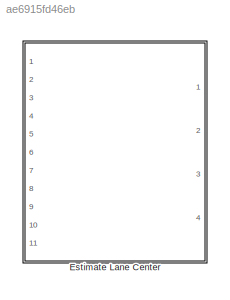
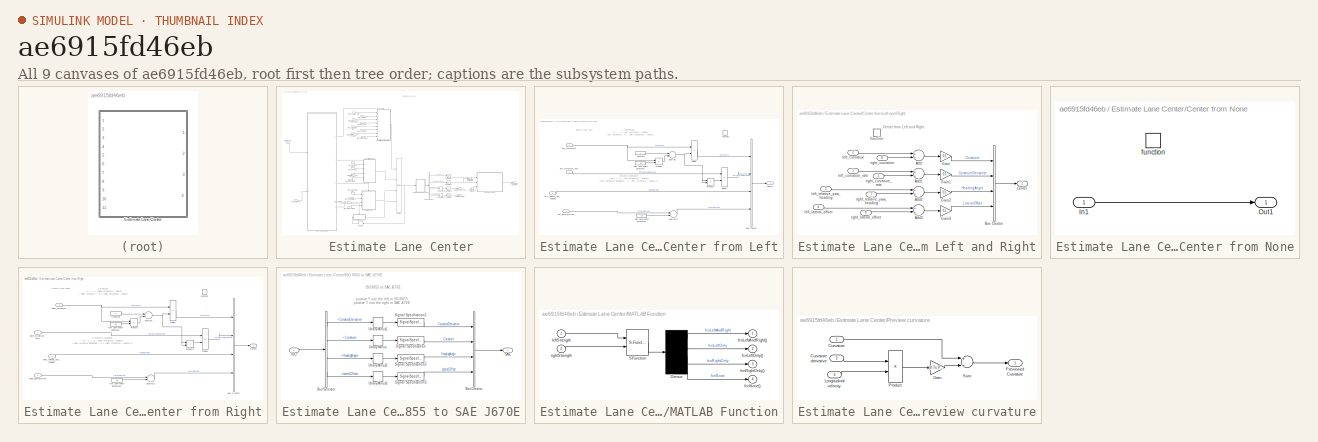
[diagram: thumbnail index - all 9 canvases of the model, root first then tree order]
MODEL slx_ae6915fd46eb
KIND model
CONFIG AbsTol = auto
CONFIG EnableMultiTasking = off
CONFIG FixedStep = auto
CONFIG MaxStep = auto
CONFIG MinStep = auto
CONFIG RelTol = 1e-3
CONFIG SampleTimeConstraint = Unconstrained
CONFIG Solver = VariableStepAuto
CONFIG SolverName = VariableStepAuto
CONFIG StartTime = 0.0
CONFIG StopTime = 10.0
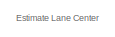
[diagram: Estimate Lane Center - part 1/3, top center region]
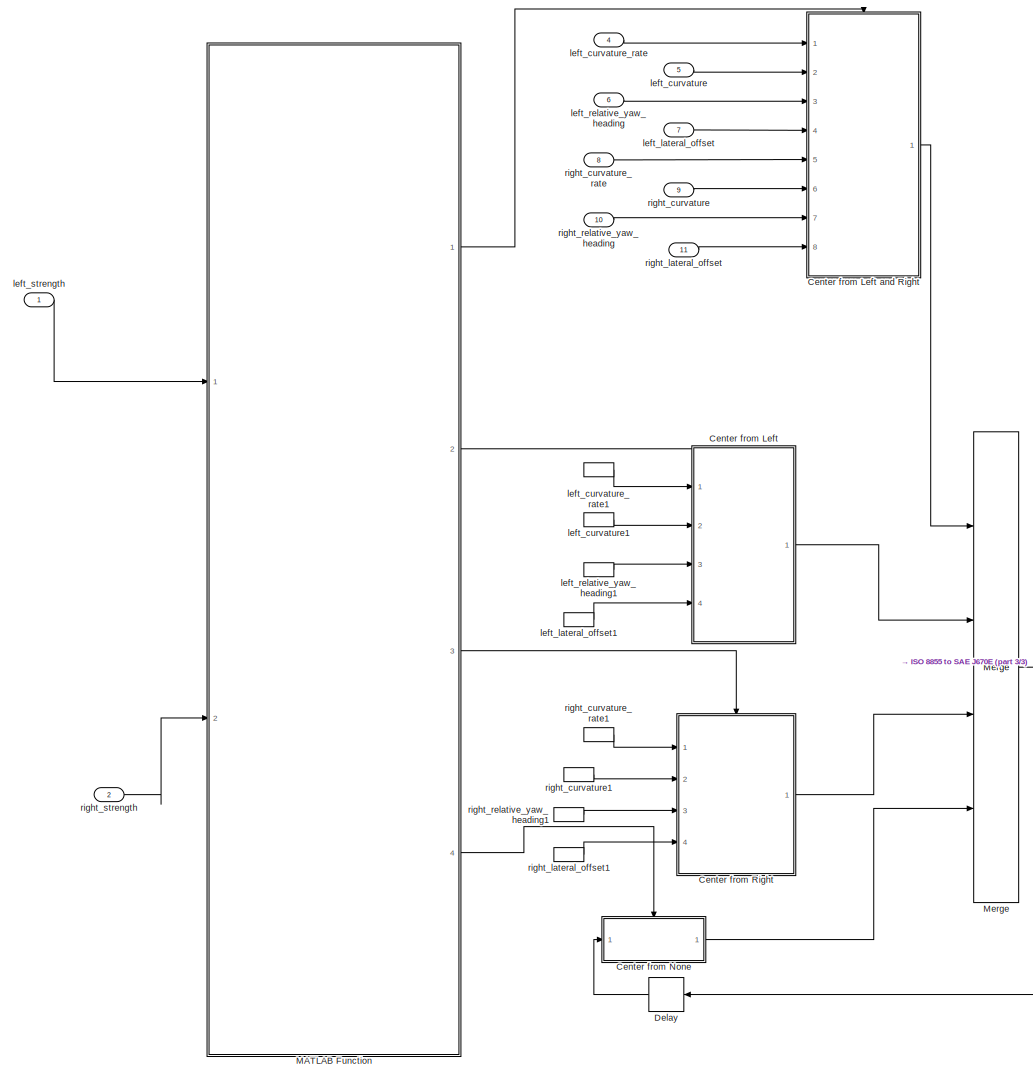
[diagram: Estimate Lane Center - part 2/3, left side, full height]
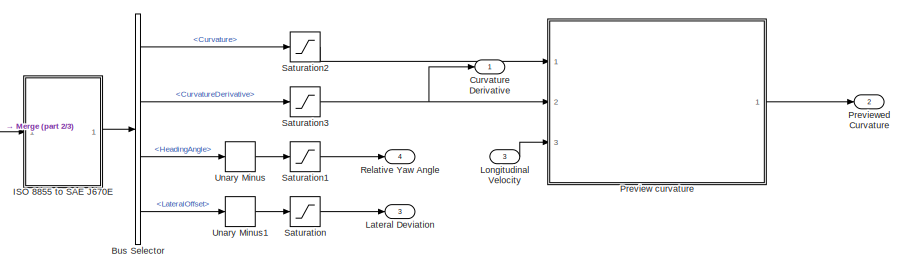
[diagram: Estimate Lane Center - part 3/3, middle right region]
BLOCK [SubSystem] Estimate Lane Center
  Ports = [11, 4]
  RTWFileNameOpts = Use function name
  RTWSystemCode = Reusable function
  RequestExecContextInheritance = off
  TreatAsAtomicUnit = on
  VariantControl = v2
BLOCK [BusSelector] Estimate Lane Center/Bus Selector
  OutputAsBus = off
  OutputSignals = Curvature,CurvatureDerivative,HeadingAngle,LateralOffset
  Ports = [1, 4]
BLOCK [SubSystem] Estimate Lane Center/Center from Left
  Ports = [4, 1, 0, 1]
  RequestExecContextInheritance = off
  TreatAsAtomicUnit = on
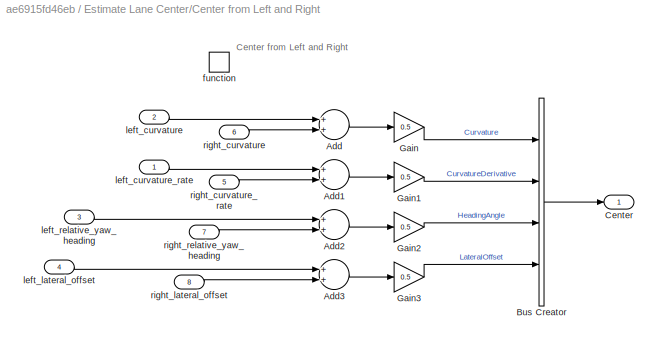
BLOCK [SubSystem] Estimate Lane Center/Center from Left and Right
  Ports = [8, 1, 0, 1]
  RequestExecContextInheritance = off
  TreatAsAtomicUnit = on
BLOCK [Sum] Estimate Lane Center/Center from Left and Right/Add
  InputSameDT = off
  OutDataTypeStr = Inherit: Inherit via internal rule
  Ports = [2, 1]
  SaturateOnIntegerOverflow = off
BLOCK [Sum] Estimate Lane Center/Center from Left and Right/Add1
  InputSameDT = off
  OutDataTypeStr = Inherit: Inherit via internal rule
  Ports = [2, 1]
  SaturateOnIntegerOverflow = off
BLOCK [Sum] Estimate Lane Center/Center from Left and Right/Add2
  InputSameDT = off
  OutDataTypeStr = Inherit: Inherit via internal rule
  Ports = [2, 1]
  SaturateOnIntegerOverflow = off
BLOCK [Sum] Estimate Lane Center/Center from Left and Right/Add3
  InputSameDT = off
  OutDataTypeStr = Inherit: Inherit via internal rule
  Ports = [2, 1]
  SaturateOnIntegerOverflow = off
BLOCK [BusCreator] Estimate Lane Center/Center from Left and Right/Bus Creator
  DisplayOption = bar
  InheritFromInputs = on
  Inputs = 4
  Ports = [4, 1]
BLOCK [Outport] Estimate Lane Center/Center from Left and Right/Center
  IconDisplay = Port number
  VectorParamsAs1DForOutWhenUnconnected = off
BLOCK [Gain] Estimate Lane Center/Center from Left and Right/Gain
  Gain = 0.5
  OutDataTypeStr = Inherit: Inherit via internal rule
  ParamDataTypeStr = Inherit: Inherit via internal rule
  SaturateOnIntegerOverflow = off
BLOCK [Gain] Estimate Lane Center/Center from Left and Right/Gain1
  Gain = 0.5
  OutDataTypeStr = Inherit: Inherit via internal rule
  ParamDataTypeStr = Inherit: Inherit via internal rule
  SaturateOnIntegerOverflow = off
BLOCK [Gain] Estimate Lane Center/Center from Left and Right/Gain2
  Gain = 0.5
  OutDataTypeStr = Inherit: Inherit via internal rule
  ParamDataTypeStr = Inherit: Inherit via internal rule
  SaturateOnIntegerOverflow = off
BLOCK [Gain] Estimate Lane Center/Center from Left and Right/Gain3
  Gain = 0.5
  OutDataTypeStr = Inherit: Inherit via internal rule
  ParamDataTypeStr = Inherit: Inherit via internal rule
  SaturateOnIntegerOverflow = off
BLOCK [TriggerPort] Estimate Lane Center/Center from Left and Right/function
  Ports = []
  StatesWhenEnabling = held
  TriggerType = function-call
  VariantControl = Variant
BLOCK [Inport] Estimate Lane Center/Center from Left and Right/left_curvature
  IconDisplay = Port number
  Port = 2
BLOCK [Inport] Estimate Lane Center/Center from Left and Right/left_curvature_rate
  IconDisplay = Port number
BLOCK [Inport] Estimate Lane Center/Center from Left and Right/left_lateral_offset
  IconDisplay = Port number
  Port = 4
BLOCK [Inport] Estimate Lane Center/Center from Left and Right/left_relative_yaw_heading
  IconDisplay = Port number
  Port = 3
BLOCK [Inport] Estimate Lane Center/Center from Left and Right/right_curvature
  IconDisplay = Port number
  Port = 6
BLOCK [Inport] Estimate Lane Center/Center from Left and Right/right_curvature_rate
  IconDisplay = Port number
  Port = 5
BLOCK [Inport] Estimate Lane Center/Center from Left and Right/right_lateral_offset
  IconDisplay = Port number
  Port = 8
BLOCK [Inport] Estimate Lane Center/Center from Left and Right/right_relative_yaw_heading
  IconDisplay = Port number
  Port = 7
BLOCK [BusCreator] Estimate Lane Center/Center from Left/Bus Creator
  DisplayOption = bar
  InheritFromInputs = on
  Inputs = 4
  Ports = [4, 1]
BLOCK [Outport] Estimate Lane Center/Center from Left/Center
  IconDisplay = Port number
  VectorParamsAs1DForOutWhenUnconnected = off
BLOCK [Constant] Estimate Lane Center/Center from Left/Constant
  OutDataTypeStr = Inherit: Inherit via back propagation
BLOCK [Product] Estimate Lane Center/Center from Left/Divide
  InputSameDT = off
  Inputs = */
  OutDataTypeStr = Inherit: Inherit via internal rule
  Ports = [2, 1]
  RndMeth = Floor
  SaturateOnIntegerOverflow = off
BLOCK [Product] Estimate Lane Center/Center from Left/Divide1
  InputSameDT = off
  Inputs = */
  OutDataTypeStr = Inherit: Inherit via internal rule
  Ports = [2, 1]
  RndMeth = Floor
  SaturateOnIntegerOverflow = off
BLOCK [Constant] Estimate Lane Center/Center from Left/Half Lane Width Estimate
  OutDataTypeStr = Inherit: Inherit via back propagation
  Value = 1.8
BLOCK [Constant] Estimate Lane Center/Center from Left/Half Lane Width Estimate1
  OutDataTypeStr = Inherit: Inherit via back propagation
  Value = 1.8
BLOCK [Product] Estimate Lane Center/Center from Left/Product
  InputSameDT = off
  OutDataTypeStr = Inherit: Inherit via internal rule
  Ports = [2, 1]
  RndMeth = Floor
  SaturateOnIntegerOverflow = off
BLOCK [Product] Estimate Lane Center/Center from Left/Product1
  InputSameDT = off
  OutDataTypeStr = Inherit: Inherit via internal rule
  Ports = [2, 1]
  RndMeth = Floor
  SaturateOnIntegerOverflow = off
BLOCK [Sum] Estimate Lane Center/Center from Left/Subtract
  InputSameDT = off
  Inputs = +-
  OutDataTypeStr = Inherit: Inherit via internal rule
  Ports = [2, 1]
  SaturateOnIntegerOverflow = off
BLOCK [Sum] Estimate Lane Center/Center from Left/Subtract1
  InputSameDT = off
  Inputs = +-
  OutDataTypeStr = Inherit: Inherit via internal rule
  Ports = [2, 1]
  SaturateOnIntegerOverflow = off
BLOCK [TriggerPort] Estimate Lane Center/Center from Left/function
  Ports = []
  StatesWhenEnabling = held
  TriggerType = function-call
  VariantControl = Variant
BLOCK [Inport] Estimate Lane Center/Center from Left/left_curvature
  IconDisplay = Port number
  Port = 2
BLOCK [Inport] Estimate Lane Center/Center from Left/left_curvature_rate
  IconDisplay = Port number
BLOCK [Inport] Estimate Lane Center/Center from Left/left_lateral_offset
  IconDisplay = Port number
  Port = 4
BLOCK [Inport] Estimate Lane Center/Center from Left/left_relative_yaw_heading
  IconDisplay = Port number
  Port = 3
BLOCK [SubSystem] Estimate Lane Center/Center from None
  Ports = [1, 1, 0, 1]
  RequestExecContextInheritance = off
  TreatAsAtomicUnit = on
BLOCK [Inport] Estimate Lane Center/Center from None/In1
  IconDisplay = Port number
BLOCK [Outport] Estimate Lane Center/Center from None/Out1
  IconDisplay = Port number
  VectorParamsAs1DForOutWhenUnconnected = off
BLOCK [TriggerPort] Estimate Lane Center/Center from None/function
  Ports = []
  StatesWhenEnabling = held
  TriggerType = function-call
  VariantControl = Variant
BLOCK [SubSystem] Estimate Lane Center/Center from Right
  Ports = [4, 1, 0, 1]
  RequestExecContextInheritance = off
  TreatAsAtomicUnit = on
BLOCK [BusCreator] Estimate Lane Center/Center from Right/Bus Creator
  DisplayOption = bar
  InheritFromInputs = on
  Inputs = 4
  Ports = [4, 1]
BLOCK [Outport] Estimate Lane Center/Center from Right/Center
  IconDisplay = Port number
  VectorParamsAs1DForOutWhenUnconnected = off
BLOCK [Constant] Estimate Lane Center/Center from Right/Constant
  OutDataTypeStr = Inherit: Inherit via back propagation
BLOCK [Product] Estimate Lane Center/Center from Right/Divide
  InputSameDT = off
  Inputs = */
  OutDataTypeStr = Inherit: Inherit via internal rule
  Ports = [2, 1]
  RndMeth = Floor
  SaturateOnIntegerOverflow = off
BLOCK [Product] Estimate Lane Center/Center from Right/Divide1
  InputSameDT = off
  Inputs = */
  OutDataTypeStr = Inherit: Inherit via internal rule
  Ports = [2, 1]
  RndMeth = Floor
  SaturateOnIntegerOverflow = off
BLOCK [Constant] Estimate Lane Center/Center from Right/Half Lane Width Estimate
  OutDataTypeStr = Inherit: Inherit via back propagation
  Value = 1.8
BLOCK [Constant] Estimate Lane Center/Center from Right/Half Lane Width Estimate1
  OutDataTypeStr = Inherit: Inherit via back propagation
  Value = 1.8
BLOCK [Product] Estimate Lane Center/Center from Right/Product
  InputSameDT = off
  OutDataTypeStr = Inherit: Inherit via internal rule
  Ports = [2, 1]
  RndMeth = Floor
  SaturateOnIntegerOverflow = off
BLOCK [Product] Estimate Lane Center/Center from Right/Product1
  InputSameDT = off
  OutDataTypeStr = Inherit: Inherit via internal rule
  Ports = [2, 1]
  RndMeth = Floor
  SaturateOnIntegerOverflow = off
BLOCK [Sum] Estimate Lane Center/Center from Right/Subtract
  InputSameDT = off
  OutDataTypeStr = Inherit: Inherit via internal rule
  Ports = [2, 1]
  SaturateOnIntegerOverflow = off
BLOCK [Sum] Estimate Lane Center/Center from Right/Subtract1
  InputSameDT = off
  OutDataTypeStr = Inherit: Inherit via internal rule
  Ports = [2, 1]
  SaturateOnIntegerOverflow = off
BLOCK [TriggerPort] Estimate Lane Center/Center from Right/function
  Ports = []
  StatesWhenEnabling = held
  TriggerType = function-call
  VariantControl = Variant
BLOCK [Inport] Estimate Lane Center/Center from Right/right_curvature
  IconDisplay = Port number
  Port = 2
BLOCK [Inport] Estimate Lane Center/Center from Right/right_curvature_rate
  IconDisplay = Port number
BLOCK [Inport] Estimate Lane Center/Center from Right/right_lateral_offset
  IconDisplay = Port number
  Port = 4
BLOCK [Inport] Estimate Lane Center/Center from Right/right_relative_yaw_heading
  IconDisplay = Port number
  Port = 3
BLOCK [Outport] Estimate Lane Center/Curvature Derivative
  IconDisplay = Port number
BLOCK [Delay] Estimate Lane Center/Delay
  DelayLength = 1
  InputPortMap = u0
  Ports = [1, 1]
BLOCK [SubSystem] Estimate Lane Center/ISO 8855 to SAE J670E
  Ports = [1, 1]
  RequestExecContextInheritance = off
BLOCK [BusCreator] Estimate Lane Center/ISO 8855 to SAE J670E/Bus Creator
  DisplayOption = bar
  InheritFromInputs = on
  Inputs = 4
  Ports = [4, 1]
BLOCK [BusSelector] Estimate Lane Center/ISO 8855 to SAE J670E/Bus Selector
  OutputAsBus = off
  OutputSignals = CurvatureDerivative,Curvature,HeadingAngle,LateralOffset
  Ports = [1, 4]
BLOCK [Inport] Estimate Lane Center/ISO 8855 to SAE J670E/ISO
  IconDisplay = Port number
BLOCK [Outport] Estimate Lane Center/ISO 8855 to SAE J670E/SAE
  IconDisplay = Port number
  VectorParamsAs1DForOutWhenUnconnected = off
BLOCK [SignalSpecification] Estimate Lane Center/ISO 8855 to SAE J670E/Signal Specification
  Unit = 1/m^2
BLOCK [SignalSpecification] Estimate Lane Center/ISO 8855 to SAE J670E/Signal Specification1
  Unit = 1/m
BLOCK [SignalSpecification] Estimate Lane Center/ISO 8855 to SAE J670E/Signal Specification2
  Unit = rad
BLOCK [SignalSpecification] Estimate Lane Center/ISO 8855 to SAE J670E/Signal Specification3
  Unit = m
BLOCK [UnaryMinus] Estimate Lane Center/ISO 8855 to SAE J670E/Unary Minus
BLOCK [UnaryMinus] Estimate Lane Center/ISO 8855 to SAE J670E/Unary Minus1
BLOCK [UnaryMinus] Estimate Lane Center/ISO 8855 to SAE J670E/Unary Minus2
BLOCK [UnaryMinus] Estimate Lane Center/ISO 8855 to SAE J670E/Unary Minus3
BLOCK [Outport] Estimate Lane Center/Lateral Deviation
  IconDisplay = Port number
  Port = 3
  VectorParamsAs1DForOutWhenUnconnected = off
BLOCK [Inport] Estimate Lane Center/Longitudinal Velocity
  IconDisplay = Port number
  Port = 3
BLOCK [SubSystem] Estimate Lane Center/MATLAB Function
  ErrorFcn = Stateflow.Translate.translate
  PermitHierarchicalResolution = ExplicitOnly
  Ports = [2, 4]
  RequestExecContextInheritance = off
  SFBlockType = MATLAB Function
  TreatAsAtomicUnit = on
BLOCK [Demux] Estimate Lane Center/MATLAB Function/ Demux 
  Ports = [1, 4]
BLOCK [S-Function] Estimate Lane Center/MATLAB Function/ SFunction 
  EnableBusSupport = off
  FunctionName = sf_sfun
  PortCounts = [2 1]
  Ports = [2, 1]
  SFcnIsStateOwnerBlock = off
  SFunctionDeploymentMode = off
  Tag = Stateflow S-Function 9
BLOCK [Outport] Estimate Lane Center/MATLAB Function/fcnLeftAndRight()
  IconDisplay = Port number
  VectorParamsAs1DForOutWhenUnconnected = off
BLOCK [Outport] Estimate Lane Center/MATLAB Function/fcnLeftOnly()
  IconDisplay = Port number
  Port = 2
  VectorParamsAs1DForOutWhenUnconnected = off
BLOCK [Outport] Estimate Lane Center/MATLAB Function/fcnNone()
  IconDisplay = Port number
  Port = 4
  VectorParamsAs1DForOutWhenUnconnected = off
BLOCK [Outport] Estimate Lane Center/MATLAB Function/fcnRightOnly()
  IconDisplay = Port number
  Port = 3
  VectorParamsAs1DForOutWhenUnconnected = off
BLOCK [Inport] Estimate Lane Center/MATLAB Function/leftStrength
  IconDisplay = Port number
BLOCK [Inport] Estimate Lane Center/MATLAB Function/rightStrength
  IconDisplay = Port number
  Port = 2
BLOCK [Merge] Estimate Lane Center/Merge
  Inputs = 4
  Ports = [4, 1]
BLOCK [SubSystem] Estimate Lane Center/Preview curvature
  Ports = [3, 1]
  RequestExecContextInheritance = off
BLOCK [Inport] Estimate Lane Center/Preview curvature/Curvature
  IconDisplay = Port number
BLOCK [Inport] Estimate Lane Center/Preview curvature/Curvature derivative
  IconDisplay = Port number
  Port = 2
BLOCK [Gain] Estimate Lane Center/Preview curvature/Gain
  Gain = [0:Ts:PredictionHorizon*Ts]'
  OutDataTypeStr = Inherit: Inherit via internal rule
  ParamDataTypeStr = Inherit: Inherit via internal rule
  SaturateOnIntegerOverflow = off
BLOCK [Inport] Estimate Lane Center/Preview curvature/Longitudinal velocity
  IconDisplay = Port number
  Port = 3
BLOCK [Outport] Estimate Lane Center/Preview curvature/Previewed Curvature
  IconDisplay = Port number
  VectorParamsAs1DForOutWhenUnconnected = off
BLOCK [Product] Estimate Lane Center/Preview curvature/Product
  InputSameDT = off
  OutDataTypeStr = Inherit: Inherit via internal rule
  Ports = [2, 1]
  RndMeth = Floor
  SaturateOnIntegerOverflow = off
BLOCK [Sum] Estimate Lane Center/Preview curvature/Sum
  InputSameDT = off
  OutDataTypeStr = Inherit: Inherit via internal rule
  Ports = [2, 1]
  SaturateOnIntegerOverflow = off
BLOCK [Outport] Estimate Lane Center/Previewed Curvature
  IconDisplay = Port number
  Port = 2
  VectorParamsAs1DForOutWhenUnconnected = off
BLOCK [Outport] Estimate Lane Center/Relative Yaw Angle
  IconDisplay = Port number
  Port = 4
  VectorParamsAs1DForOutWhenUnconnected = off
BLOCK [Saturate] Estimate Lane Center/Saturation
  InputPortMap = u0
  Ports = [1, 1]
BLOCK [Saturate] Estimate Lane Center/Saturation1
  InputPortMap = u0
  LowerLimit = -0.6
  Ports = [1, 1]
  UpperLimit = 0.6
BLOCK [Saturate] Estimate Lane Center/Saturation2
  InputPortMap = u0
  LowerLimit = -0.15
  Ports = [1, 1]
  UpperLimit = 0.15
BLOCK [Saturate] Estimate Lane Center/Saturation3
  InputPortMap = u0
  LowerLimit = -0.06
  Ports = [1, 1]
  UpperLimit = 0.06
BLOCK [UnaryMinus] Estimate Lane Center/Unary Minus
BLOCK [UnaryMinus] Estimate Lane Center/Unary Minus1
BLOCK [Inport] Estimate Lane Center/left_curvature
  IconDisplay = Port number
  Port = 5
BLOCK [InportShadow] Estimate Lane Center/left_curvature1
  IconDisplay = Port number
  Port = 5
BLOCK [Inport] Estimate Lane Center/left_curvature_rate
  IconDisplay = Port number
  Port = 4
BLOCK [InportShadow] Estimate Lane Center/left_curvature_rate1
  IconDisplay = Port number
  Port = 4
BLOCK [Inport] Estimate Lane Center/left_lateral_offset
  IconDisplay = Port number
  Port = 7
BLOCK [InportShadow] Estimate Lane Center/left_lateral_offset1
  IconDisplay = Port number
  Port = 7
BLOCK [Inport] Estimate Lane Center/left_relative_yaw_heading
  IconDisplay = Port number
  Port = 6
BLOCK [InportShadow] Estimate Lane Center/left_relative_yaw_heading1
  IconDisplay = Port number
  Port = 6
BLOCK [Inport] Estimate Lane Center/left_strength
  IconDisplay = Port number
BLOCK [Inport] Estimate Lane Center/right_curvature
  IconDisplay = Port number
  Port = 9
BLOCK [InportShadow] Estimate Lane Center/right_curvature1
  IconDisplay = Port number
  Port = 9
BLOCK [Inport] Estimate Lane Center/right_curvature_rate
  IconDisplay = Port number
  Port = 8
BLOCK [InportShadow] Estimate Lane Center/right_curvature_rate1
  IconDisplay = Port number
  Port = 8
BLOCK [Inport] Estimate Lane Center/right_lateral_offset
  IconDisplay = Port number
  Port = 11
BLOCK [InportShadow] Estimate Lane Center/right_lateral_offset1
  IconDisplay = Port number
  Port = 11
BLOCK [Inport] Estimate Lane Center/right_relative_yaw_heading
  IconDisplay = Port number
  Port = 10
BLOCK [InportShadow] Estimate Lane Center/right_relative_yaw_heading1
  IconDisplay = Port number
  Port = 10
BLOCK [Inport] Estimate Lane Center/right_strength
  IconDisplay = Port number
  Port = 2
ANNOTATION Estimate Lane Center: Estimate Lane Center
ANNOTATION Estimate Lane Center/Center from Left: Center from Left
ANNOTATION Estimate Lane Center/Center from Left: Curvature = 1 / ( 1 / (left curvature) – guard) = left curvature / (1 – (left curvature) * guard).
ANNOTATION Estimate Lane Center/Center from Left: Curvature Derivative = D[ 1 / ( 1 / (left curvature) – guard)] = left curvature derivative / (1 – (left curvature) * guard)^2.
ANNOTATION Estimate Lane Center/Center from Left and Right: Center from Left and Right
ANNOTATION Estimate Lane Center/Center from Right: Center from Right
ANNOTATION Estimate Lane Center/Center from Right: Curvature = 1 / ( 1 / (right curvature) + guard) = right curvature / (1 + (right curvature) * guard)
ANNOTATION Estimate Lane Center/Center from Right: Curvature Derivative = D[ 1 / ( 1 / (right curvature) + guard)] = right curvature derivative / (1 + (right curvature) * guard)^2
ANNOTATION Estimate Lane Center/ISO 8855 to SAE J670E: ISO 8855 to SAE J670E
ANNOTATION Estimate Lane Center/ISO 8855 to SAE J670E: positive Y is to the left in ISO 8855 positive Y is to the right in SAE J670E
LINE Estimate Lane Center/Bus Selector:1 -> Estimate Lane Center/Saturation2:1
LINE Estimate Lane Center/Bus Selector:2 -> Estimate Lane Center/Saturation3:1
LINE Estimate Lane Center/Bus Selector:3 -> Estimate Lane Center/Unary Minus:1
LINE Estimate Lane Center/Bus Selector:4 -> Estimate Lane Center/Unary Minus1:1
LINE Estimate Lane Center/Center from Left and Right/Add1:1 -> Estimate Lane Center/Center from Left and Right/Gain1:1
LINE Estimate Lane Center/Center from Left and Right/Add2:1 -> Estimate Lane Center/Center from Left and Right/Gain2:1
LINE Estimate Lane Center/Center from Left and Right/Add3:1 -> Estimate Lane Center/Center from Left and Right/Gain3:1
LINE Estimate Lane Center/Center from Left and Right/Add:1 -> Estimate Lane Center/Center from Left and Right/Gain:1
LINE Estimate Lane Center/Center from Left and Right/Bus Creator:1 -> Estimate Lane Center/Center from Left and Right/Center:1
LINE Estimate Lane Center/Center from Left and Right/Gain1:1 -> Estimate Lane Center/Center from Left and Right/Bus Creator:2
LINE Estimate Lane Center/Center from Left and Right/Gain2:1 -> Estimate Lane Center/Center from Left and Right/Bus Creator:3
LINE Estimate Lane Center/Center from Left and Right/Gain3:1 -> Estimate Lane Center/Center from Left and Right/Bus Creator:4
LINE Estimate Lane Center/Center from Left and Right/Gain:1 -> Estimate Lane Center/Center from Left and Right/Bus Creator:1
LINE Estimate Lane Center/Center from Left and Right/left_curvature:1 -> Estimate Lane Center/Center from Left and Right/Add:1
LINE Estimate Lane Center/Center from Left and Right/left_curvature_rate:1 -> Estimate Lane Center/Center from Left and Right/Add1:1
LINE Estimate Lane Center/Center from Left and Right/left_lateral_offset:1 -> Estimate Lane Center/Center from Left and Right/Add3:1
LINE Estimate Lane Center/Center from Left and Right/left_relative_yaw_heading:1 -> Estimate Lane Center/Center from Left and Right/Add2:1
LINE Estimate Lane Center/Center from Left and Right/right_curvature:1 -> Estimate Lane Center/Center from Left and Right/Add:2
LINE Estimate Lane Center/Center from Left and Right/right_curvature_rate:1 -> Estimate Lane Center/Center from Left and Right/Add1:2
LINE Estimate Lane Center/Center from Left and Right/right_lateral_offset:1 -> Estimate Lane Center/Center from Left and Right/Add3:2
LINE Estimate Lane Center/Center from Left and Right/right_relative_yaw_heading:1 -> Estimate Lane Center/Center from Left and Right/Add2:2
LINE Estimate Lane Center/Center from Left and Right:1 -> Estimate Lane Center/Merge:1
LINE Estimate Lane Center/Center from Left/Bus Creator:1 -> Estimate Lane Center/Center from Left/Center:1
LINE Estimate Lane Center/Center from Left/Constant:1 -> Estimate Lane Center/Center from Left/Subtract:1
LINE Estimate Lane Center/Center from Left/Divide1:1 -> Estimate Lane Center/Center from Left/Bus Creator:2
LINE Estimate Lane Center/Center from Left/Divide:1 -> Estimate Lane Center/Center from Left/Bus Creator:1
LINE Estimate Lane Center/Center from Left/Half Lane Width Estimate1:1 -> Estimate Lane Center/Center from Left/Subtract1:2
LINE Estimate Lane Center/Center from Left/Half Lane Width Estimate:1 -> Estimate Lane Center/Center from Left/Product:2
LINE Estimate Lane Center/Center from Left/Product1:1 -> Estimate Lane Center/Center from Left/Divide1:2
LINE Estimate Lane Center/Center from Left/Product:1 -> Estimate Lane Center/Center from Left/Subtract:2
LINE Estimate Lane Center/Center from Left/Subtract1:1 -> Estimate Lane Center/Center from Left/Bus Creator:4
NET Estimate Lane Center/Center from Left/Subtract:1 -> Estimate Lane Center/Center from Left/Divide:2, Estimate Lane Center/Center from Left/Product1:1, Estimate Lane Center/Center from Left/Product1:2
NET Estimate Lane Center/Center from Left/left_curvature:1 -> Estimate Lane Center/Center from Left/Divide:1, Estimate Lane Center/Center from Left/Product:1
LINE Estimate Lane Center/Center from Left/left_curvature_rate:1 -> Estimate Lane Center/Center from Left/Divide1:1
LINE Estimate Lane Center/Center from Left/left_lateral_offset:1 -> Estimate Lane Center/Center from Left/Subtract1:1
LINE Estimate Lane Center/Center from Left/left_relative_yaw_heading:1 -> Estimate Lane Center/Center from Left/Bus Creator:3
LINE Estimate Lane Center/Center from Left:1 -> Estimate Lane Center/Merge:2
LINE Estimate Lane Center/Center from None/In1:1 -> Estimate Lane Center/Center from None/Out1:1
LINE Estimate Lane Center/Center from None:1 -> Estimate Lane Center/Merge:4
LINE Estimate Lane Center/Center from Right/Bus Creator:1 -> Estimate Lane Center/Center from Right/Center:1
LINE Estimate Lane Center/Center from Right/Constant:1 -> Estimate Lane Center/Center from Right/Subtract:1
LINE Estimate Lane Center/Center from Right/Divide1:1 -> Estimate Lane Center/Center from Right/Bus Creator:2
LINE Estimate Lane Center/Center from Right/Divide:1 -> Estimate Lane Center/Center from Right/Bus Creator:1
LINE Estimate Lane Center/Center from Right/Half Lane Width Estimate1:1 -> Estimate Lane Center/Center from Right/Subtract1:2
LINE Estimate Lane Center/Center from Right/Half Lane Width Estimate:1 -> Estimate Lane Center/Center from Right/Product:2
LINE Estimate Lane Center/Center from Right/Product1:1 -> Estimate Lane Center/Center from Right/Divide1:2
LINE Estimate Lane Center/Center from Right/Product:1 -> Estimate Lane Center/Center from Right/Subtract:2
LINE Estimate Lane Center/Center from Right/Subtract1:1 -> Estimate Lane Center/Center from Right/Bus Creator:4
NET Estimate Lane Center/Center from Right/Subtract:1 -> Estimate Lane Center/Center from Right/Divide:2, Estimate Lane Center/Center from Right/Product1:1, Estimate Lane Center/Center from Right/Product1:2
NET Estimate Lane Center/Center from Right/right_curvature:1 -> Estimate Lane Center/Center from Right/Divide:1, Estimate Lane Center/Center from Right/Product:1
LINE Estimate Lane Center/Center from Right/right_curvature_rate:1 -> Estimate Lane Center/Center from Right/Divide1:1
LINE Estimate Lane Center/Center from Right/right_lateral_offset:1 -> Estimate Lane Center/Center from Right/Subtract1:1
LINE Estimate Lane Center/Center from Right/right_relative_yaw_heading:1 -> Estimate Lane Center/Center from Right/Bus Creator:3
LINE Estimate Lane Center/Center from Right:1 -> Estimate Lane Center/Merge:3
LINE Estimate Lane Center/Delay:1 -> Estimate Lane Center/Center from None:1
LINE Estimate Lane Center/ISO 8855 to SAE J670E/Bus Creator:1 -> Estimate Lane Center/ISO 8855 to SAE J670E/SAE:1
LINE Estimate Lane Center/ISO 8855 to SAE J670E/Bus Selector:1 -> Estimate Lane Center/ISO 8855 to SAE J670E/Unary Minus1:1
LINE Estimate Lane Center/ISO 8855 to SAE J670E/Bus Selector:2 -> Estimate Lane Center/ISO 8855 to SAE J670E/Unary Minus:1
LINE Estimate Lane Center/ISO 8855 to SAE J670E/Bus Selector:3 -> Estimate Lane Center/ISO 8855 to SAE J670E/Unary Minus2:1
LINE Estimate Lane Center/ISO 8855 to SAE J670E/Bus Selector:4 -> Estimate Lane Center/ISO 8855 to SAE J670E/Unary Minus3:1
LINE Estimate Lane Center/ISO 8855 to SAE J670E/ISO:1 -> Estimate Lane Center/ISO 8855 to SAE J670E/Bus Selector:1
LINE Estimate Lane Center/ISO 8855 to SAE J670E/Signal Specification1:1 -> Estimate Lane Center/ISO 8855 to SAE J670E/Bus Creator:1
LINE Estimate Lane Center/ISO 8855 to SAE J670E/Signal Specification2:1 -> Estimate Lane Center/ISO 8855 to SAE J670E/Bus Creator:3
LINE Estimate Lane Center/ISO 8855 to SAE J670E/Signal Specification3:1 -> Estimate Lane Center/ISO 8855 to SAE J670E/Bus Creator:4
LINE Estimate Lane Center/ISO 8855 to SAE J670E/Signal Specification:1 -> Estimate Lane Center/ISO 8855 to SAE J670E/Bus Creator:2
LINE Estimate Lane Center/ISO 8855 to SAE J670E/Unary Minus1:1 -> Estimate Lane Center/ISO 8855 to SAE J670E/Signal Specification1:1
LINE Estimate Lane Center/ISO 8855 to SAE J670E/Unary Minus2:1 -> Estimate Lane Center/ISO 8855 to SAE J670E/Signal Specification2:1
LINE Estimate Lane Center/ISO 8855 to SAE J670E/Unary Minus3:1 -> Estimate Lane Center/ISO 8855 to SAE J670E/Signal Specification3:1
LINE Estimate Lane Center/ISO 8855 to SAE J670E/Unary Minus:1 -> Estimate Lane Center/ISO 8855 to SAE J670E/Signal Specification:1
LINE Estimate Lane Center/ISO 8855 to SAE J670E:1 -> Estimate Lane Center/Bus Selector:1
LINE Estimate Lane Center/Longitudinal Velocity:1 -> Estimate Lane Center/Preview curvature:3
LINE Estimate Lane Center/MATLAB Function:1 -> Estimate Lane Center/Center from Left and Right:trigger
LINE Estimate Lane Center/MATLAB Function:2 -> Estimate Lane Center/Center from Left:trigger
LINE Estimate Lane Center/MATLAB Function:3 -> Estimate Lane Center/Center from Right:trigger
LINE Estimate Lane Center/MATLAB Function:4 -> Estimate Lane Center/Center from None:trigger
NET Estimate Lane Center/Merge:1 -> Estimate Lane Center/Delay:1, Estimate Lane Center/ISO 8855 to SAE J670E:1
LINE Estimate Lane Center/Preview curvature/Curvature derivative:1 -> Estimate Lane Center/Preview curvature/Product:1
LINE Estimate Lane Center/Preview curvature/Curvature:1 -> Estimate Lane Center/Preview curvature/Sum:1
LINE Estimate Lane Center/Preview curvature/Gain:1 -> Estimate Lane Center/Preview curvature/Sum:2
LINE Estimate Lane Center/Preview curvature/Longitudinal velocity:1 -> Estimate Lane Center/Preview curvature/Product:2
LINE Estimate Lane Center/Preview curvature/Product:1 -> Estimate Lane Center/Preview curvature/Gain:1
LINE Estimate Lane Center/Preview curvature/Sum:1 -> Estimate Lane Center/Preview curvature/Previewed Curvature:1
LINE Estimate Lane Center/Preview curvature:1 -> Estimate Lane Center/Previewed Curvature:1
LINE Estimate Lane Center/Saturation1:1 -> Estimate Lane Center/Relative Yaw Angle:1
LINE Estimate Lane Center/Saturation2:1 -> Estimate Lane Center/Preview curvature:1
NET Estimate Lane Center/Saturation3:1 -> Estimate Lane Center/Curvature Derivative:1, Estimate Lane Center/Preview curvature:2
LINE Estimate Lane Center/Saturation:1 -> Estimate Lane Center/Lateral Deviation:1
LINE Estimate Lane Center/Unary Minus1:1 -> Estimate Lane Center/Saturation:1
LINE Estimate Lane Center/Unary Minus:1 -> Estimate Lane Center/Saturation1:1
LINE Estimate Lane Center/left_curvature1:1 -> Estimate Lane Center/Center from Left:2
LINE Estimate Lane Center/left_curvature:1 -> Estimate Lane Center/Center from Left and Right:2
LINE Estimate Lane Center/left_curvature_rate1:1 -> Estimate Lane Center/Center from Left:1
LINE Estimate Lane Center/left_curvature_rate:1 -> Estimate Lane Center/Center from Left and Right:1
LINE Estimate Lane Center/left_lateral_offset1:1 -> Estimate Lane Center/Center from Left:4
LINE Estimate Lane Center/left_lateral_offset:1 -> Estimate Lane Center/Center from Left and Right:4
LINE Estimate Lane Center/left_relative_yaw_heading1:1 -> Estimate Lane Center/Center from Left:3
LINE Estimate Lane Center/left_relative_yaw_heading:1 -> Estimate Lane Center/Center from Left and Right:3
LINE Estimate Lane Center/left_strength:1 -> Estimate Lane Center/MATLAB Function:1
LINE Estimate Lane Center/right_curvature1:1 -> Estimate Lane Center/Center from Right:2
LINE Estimate Lane Center/right_curvature:1 -> Estimate Lane Center/Center from Left and Right:6
LINE Estimate Lane Center/right_curvature_rate1:1 -> Estimate Lane Center/Center from Right:1
LINE Estimate Lane Center/right_curvature_rate:1 -> Estimate Lane Center/Center from Left and Right:5
LINE Estimate Lane Center/right_lateral_offset1:1 -> Estimate Lane Center/Center from Right:4
LINE Estimate Lane Center/right_lateral_offset:1 -> Estimate Lane Center/Center from Left and Right:8
LINE Estimate Lane Center/right_relative_yaw_heading1:1 -> Estimate Lane Center/Center from Right:3
LINE Estimate Lane Center/right_relative_yaw_heading:1 -> Estimate Lane Center/Center from Left and Right:7
LINE Estimate Lane Center/right_strength:1 -> Estimate Lane Center/MATLAB Function:2
note: NET lines group one-source signal fan-out (src -> all destinations, sorted); 1:1 wires keep LINE
CHART Estimate Lane Center/MATLAB Function states=1 transitions=1
  STATE_LABEL 'eML_blk_kernel()'
  STATE_LABEL 'SCRIPT:\nfunction fcn(leftStrength,rightStrength)\n\n% leftStrength  = lanes.Left.Strength;\n% rightStrength = lanes.Right.Strength;\n\nif (leftStrength > 0) && (rightStrength > 0)\n   fcnLeftAndRight();\n   \nelseif leftStrength > 0\n    fcnLeftOnly();\n    \nelseif rightStrength > 0\n    fcnRightOnly();\n    \nelse\n    fcnNone();\nend'
